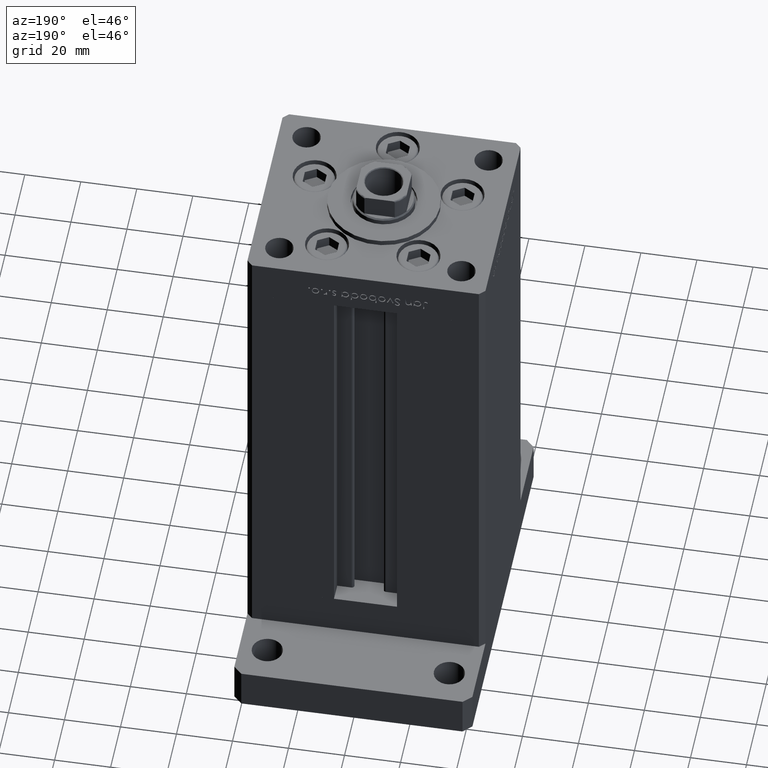
[diagram: clean part render]
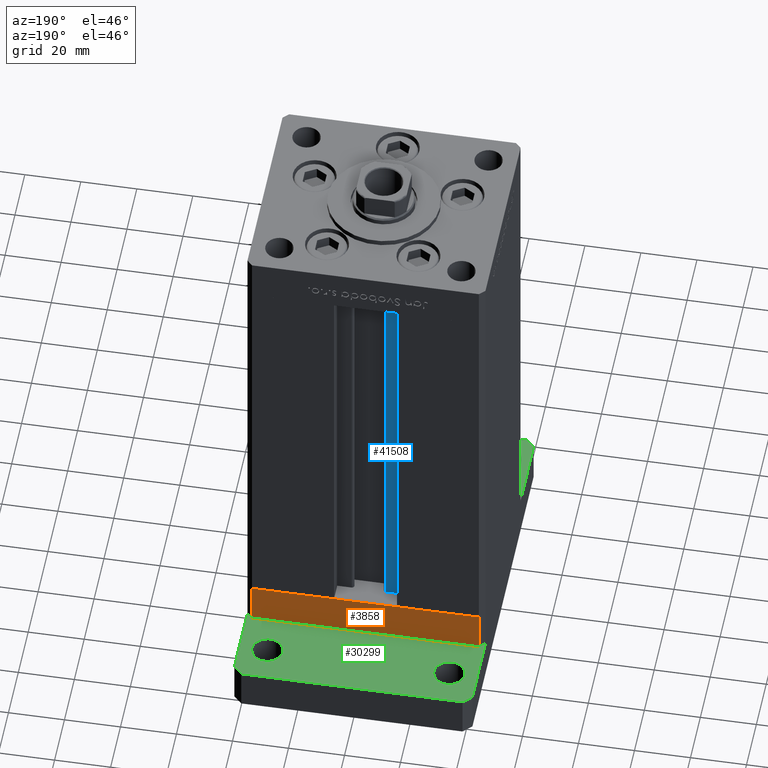
[diagram: same view with three faces highlighted in distinct colors, each labeled with its STEP entity id]
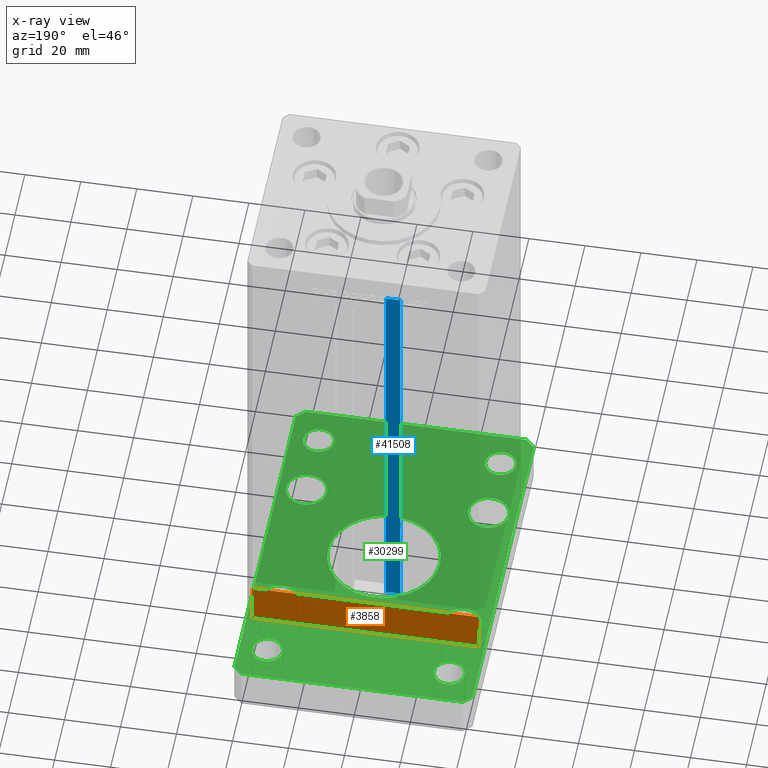
[diagram: x-ray of the same camera — body ghosted, the three highlighted faces saturated]
A machine part, auxiliary view with three faces highlighted in distinct colors.
The next image is the same camera in x-ray (body ghosted, the three faces saturated) — at least one of them is partly hidden behind the body in this view.
Their STEP definitions:

[orange] entity #3858 — the highlighted planar face has unit normal (0, 1, 0).
#3858 = ADVANCED_FACE ( 'NONE', ( #44397 ), #53098, .T. ) ;
#5335 = VERTEX_POINT ( 'NONE', #14667 ) ;
#5989 = DIRECTION ( 'NONE',  ( -1.000000000000000000, -3.426614273534436165E-16, 0.000000000000000000 ) ) ;
#6555 = VECTOR ( 'NONE', #44374, 1000.000000000000000 ) ;
#7786 = VERTEX_POINT ( 'NONE', #35727 ) ;
#9029 = CARTESIAN_POINT ( 'NONE',  ( -40.50000000000000711, 37.49999999999997868, 0.000000000000000000 ) ) ;
#9115 = ORIENTED_EDGE ( 'NONE', *, *, #15600, .T. ) ;
#11194 = VERTEX_POINT ( 'NONE', #9029 ) ;
#12774 = VECTOR ( 'NONE', #5989, 1000.000000000000000 ) ;
#12861 = EDGE_LOOP ( 'NONE', ( #27345, #18051, #34508, #9115 ) ) ;
#12873 = DIRECTION ( 'NONE',  ( -1.000000000000000000, -3.426614273534436165E-16, 0.000000000000000000 ) ) ;
#13847 = CARTESIAN_POINT ( 'NONE',  ( 40.49999999999991473, 37.50000000000000711, -15.00000000000000000 ) ) ;
#14667 = CARTESIAN_POINT ( 'NONE',  ( 40.49999999999991473, 37.50000000000000711, -15.00000000000000000 ) ) ;
#14783 = VERTEX_POINT ( 'NONE', #35538 ) ;
#15600 = EDGE_CURVE ( 'NONE', #14783, #11194, #32021, .T. ) ;
#18051 = ORIENTED_EDGE ( 'NONE', *, *, #21168, .F. ) ;
#20061 = VECTOR ( 'NONE', #34455, 1000.000000000000000 ) ;
#21168 = EDGE_CURVE ( 'NONE', #5335, #7786, #47205, .T. ) ;
#24559 = DIRECTION ( 'NONE',  ( -3.426614273534436165E-16, 1.000000000000000000, 0.000000000000000000 ) ) ;
#27345 = ORIENTED_EDGE ( 'NONE', *, *, #38574, .F. ) ;
#31616 = LINE ( 'NONE', #35146, #6555 ) ;
#32021 = LINE ( 'NONE', #48308, #45330 ) ;
#34455 = DIRECTION ( 'NONE',  ( 0.000000000000000000, 0.000000000000000000, 1.000000000000000000 ) ) ;
#34480 = LINE ( 'NONE', #13847, #12774 ) ;
#34508 = ORIENTED_EDGE ( 'NONE', *, *, #49655, .T. ) ;
#35146 = CARTESIAN_POINT ( 'NONE',  ( 40.49999999999991473, 37.50000000000000711, 0.000000000000000000 ) ) ;
#35247 = CARTESIAN_POINT ( 'NONE',  ( 40.49999999999991473, 37.50000000000000711, -15.00000000000000000 ) ) ;
#35538 = CARTESIAN_POINT ( 'NONE',  ( -40.50000000000000711, 37.49999999999997868, -15.00000000000000000 ) ) ;
#35727 = CARTESIAN_POINT ( 'NONE',  ( 40.49999999999991473, 37.50000000000000711, 0.000000000000000000 ) ) ;
#36636 = DIRECTION ( 'NONE',  ( 0.000000000000000000, 0.000000000000000000, 1.000000000000000000 ) ) ;
#38574 = EDGE_CURVE ( 'NONE', #7786, #11194, #31616, .T. ) ;
#40725 = AXIS2_PLACEMENT_3D ( 'NONE', #41385, #24559, #12873 ) ;
#41385 = CARTESIAN_POINT ( 'NONE',  ( 40.49999999999991473, 37.50000000000000711, -15.00000000000000000 ) ) ;
#44374 = DIRECTION ( 'NONE',  ( -1.000000000000000000, -3.426614273534436165E-16, 0.000000000000000000 ) ) ;
#44397 = FACE_OUTER_BOUND ( 'NONE', #12861, .T. ) ;
#45330 = VECTOR ( 'NONE', #36636, 1000.000000000000000 ) ;
#47205 = LINE ( 'NONE', #35247, #20061 ) ;
#48308 = CARTESIAN_POINT ( 'NONE',  ( -40.50000000000000711, 37.49999999999997868, -15.00000000000000000 ) ) ;
#49655 = EDGE_CURVE ( 'NONE', #5335, #14783, #34480, .T. ) ;
#53098 = PLANE ( 'NONE',  #40725 ) ;

[blue] entity #41508 — the highlighted planar face has unit normal (0, -1, 0).
#4867 = EDGE_CURVE ( 'NONE', #11484, #29551, #34582, .T. ) ;
#5018 = CARTESIAN_POINT ( 'NONE',  ( -6.183333333333999704, 30.99999999999999289, 0.000000000000000000 ) ) ;
#5281 = CARTESIAN_POINT ( 'NONE',  ( -6.183333333333999704, 30.99999999999999289, 0.000000000000000000 ) ) ;
#5554 = DIRECTION ( 'NONE',  ( -0.000000000000000000, -0.000000000000000000, 1.000000000000000000 ) ) ;
#7692 = LINE ( 'NONE', #32383, #40173 ) ;
#8278 = CARTESIAN_POINT ( 'NONE',  ( -11.25000000000000000, 30.99999999999999289, 0.000000000000000000 ) ) ;
#11484 = VERTEX_POINT ( 'NONE', #27172 ) ;
#11622 = CARTESIAN_POINT ( 'NONE',  ( -11.25000000000000000, 30.99999999999999289, 0.000000000000000000 ) ) ;
#12271 = CARTESIAN_POINT ( 'NONE',  ( -11.25000000000000000, 30.99999999999999289, 148.5000000000000000 ) ) ;
#15015 = DIRECTION ( 'NONE',  ( 1.000000000000000000, -0.000000000000000000, -0.000000000000000000 ) ) ;
#15587 = CARTESIAN_POINT ( 'NONE',  ( 0.000000000000000000, 30.99999999999999289, 148.5000000000000000 ) ) ;
#16900 = EDGE_CURVE ( 'NONE', #35732, #11484, #7692, .T. ) ;
#16966 = FACE_OUTER_BOUND ( 'NONE', #49773, .T. ) ;
#17226 = VECTOR ( 'NONE', #5554, 1000.000000000000000 ) ;
#17782 = ORIENTED_EDGE ( 'NONE', *, *, #22373, .F. ) ;
#21575 = DIRECTION ( 'NONE',  ( 0.000000000000000000, -1.000000000000000000, -0.000000000000000000 ) ) ;
#22373 = EDGE_CURVE ( 'NONE', #29551, #45578, #32150, .T. ) ;
#24383 = VECTOR ( 'NONE', #51712, 1000.000000000000000 ) ;
#27172 = CARTESIAN_POINT ( 'NONE',  ( -6.183333333333999704, 30.99999999999999289, 0.000000000000000000 ) ) ;
#27877 = ORIENTED_EDGE ( 'NONE', *, *, #16900, .F. ) ;
#29551 = VERTEX_POINT ( 'NONE', #49022 ) ;
#32150 = LINE ( 'NONE', #15587, #24383 ) ;
#32383 = CARTESIAN_POINT ( 'NONE',  ( -6.183333333333999704, 30.99999999999999289, 0.000000000000000000 ) ) ;
#32440 = DIRECTION ( 'NONE',  ( -0.000000000000000000, -0.000000000000000000, 1.000000000000000000 ) ) ;
#33522 = PLANE ( 'NONE',  #48240 ) ;
#34056 = DIRECTION ( 'NONE',  ( 0.000000000000000000, 0.000000000000000000, -1.000000000000000000 ) ) ;
#34362 = VECTOR ( 'NONE', #32440, 1000.000000000000000 ) ;
#34582 = LINE ( 'NONE', #5281, #17226 ) ;
#35732 = VERTEX_POINT ( 'NONE', #11622 ) ;
#36571 = ORIENTED_EDGE ( 'NONE', *, *, #46049, .T. ) ;
#40173 = VECTOR ( 'NONE', #15015, 1000.000000000000000 ) ;
#41508 = ADVANCED_FACE ( 'NONE', ( #16966 ), #33522, .F. ) ;
#45578 = VERTEX_POINT ( 'NONE', #12271 ) ;
#46049 = EDGE_CURVE ( 'NONE', #35732, #45578, #49803, .T. ) ;
#48240 = AXIS2_PLACEMENT_3D ( 'NONE', #5018, #21575, #34056 ) ;
#49022 = CARTESIAN_POINT ( 'NONE',  ( -6.183333333333999704, 30.99999999999999289, 148.5000000000000000 ) ) ;
#49773 = EDGE_LOOP ( 'NONE', ( #50671, #27877, #36571, #17782 ) ) ;
#49803 = LINE ( 'NONE', #8278, #34362 ) ;
#50671 = ORIENTED_EDGE ( 'NONE', *, *, #4867, .F. ) ;
#51712 = DIRECTION ( 'NONE',  ( -1.000000000000000000, 0.000000000000000000, 0.000000000000000000 ) ) ;

[green] entity #30299 — the highlighted planar face has unit normal (0, 0, 1).
#550 = AXIS2_PLACEMENT_3D ( 'NONE', #49057, #11879, #44998 ) ;
#628 = EDGE_LOOP ( 'NONE', ( #6193, #23129 ) ) ;
#1271 = AXIS2_PLACEMENT_3D ( 'NONE', #27562, #3403, #24017 ) ;
#1564 = DIRECTION ( 'NONE',  ( 1.000000000000000000, 0.000000000000000000, 0.000000000000000000 ) ) ;
#1798 = CARTESIAN_POINT ( 'NONE',  ( 32.50000000000000000, 27.50000000000000000, 15.00000000000000000 ) ) ;
#2233 = VERTEX_POINT ( 'NONE', #50962 ) ;
#2401 = DIRECTION ( 'NONE',  ( 1.000000000000000000, 0.000000000000000000, -0.000000000000000000 ) ) ;
#2526 = CIRCLE ( 'NONE', #4295, 20.00000000000000000 ) ;
#2576 = EDGE_CURVE ( 'NONE', #44452, #35004, #2526, .T. ) ;
#2601 = EDGE_CURVE ( 'NONE', #49642, #24880, #45038, .T. ) ;
#2752 = VECTOR ( 'NONE', #53684, 1000.000000000000000 ) ;
#2850 = CARTESIAN_POINT ( 'NONE',  ( -25.25000000000000711, 27.50000000000000000, 15.00000000000000000 ) ) ;
#2988 = CARTESIAN_POINT ( 'NONE',  ( -32.49999999999997868, -52.00000000000000711, 15.00000000000000000 ) ) ;
#3046 = EDGE_LOOP ( 'NONE', ( #7730, #43377 ) ) ;
#3386 = CARTESIAN_POINT ( 'NONE',  ( 37.99999999999999289, 51.99999999999999289, 15.00000000000000000 ) ) ;
#3403 = DIRECTION ( 'NONE',  ( 0.000000000000000000, 0.000000000000000000, 1.000000000000000000 ) ) ;
#3588 = VERTEX_POINT ( 'NONE', #24879 ) ;
#3978 = EDGE_LOOP ( 'NONE', ( #49546, #10743 ) ) ;
#4092 = EDGE_CURVE ( 'NONE', #32156, #18810, #43779, .T. ) ;
#4173 = CIRCLE ( 'NONE', #42304, 5.499999999999994671 ) ;
#4248 = ORIENTED_EDGE ( 'NONE', *, *, #28396, .T. ) ;
#4295 = AXIS2_PLACEMENT_3D ( 'NONE', #46908, #21944, #1564 ) ;
#4359 = EDGE_LOOP ( 'NONE', ( #4714, #39036 ) ) ;
#4714 = ORIENTED_EDGE ( 'NONE', *, *, #28119, .F. ) ;
#4851 = VERTEX_POINT ( 'NONE', #26440 ) ;
#5119 = DIRECTION ( 'NONE',  ( 0.000000000000000000, 0.000000000000000000, 1.000000000000000000 ) ) ;
#5358 = DIRECTION ( 'NONE',  ( 1.000000000000000000, 0.000000000000000000, 0.000000000000000000 ) ) ;
#5919 = DIRECTION ( 'NONE',  ( 0.000000000000000000, 0.000000000000000000, 1.000000000000000000 ) ) ;
#6193 = ORIENTED_EDGE ( 'NONE', *, *, #2576, .F. ) ;
#6600 = DIRECTION ( 'NONE',  ( -0.7071067811865466846, -0.7071067811865483499, 0.000000000000000000 ) ) ;
#6716 = EDGE_CURVE ( 'NONE', #51656, #2233, #51113, .T. ) ;
#7353 = CARTESIAN_POINT ( 'NONE',  ( -39.50000000000000000, -65.00000000000000000, 15.00000000000000000 ) ) ;
#7613 = DIRECTION ( 'NONE',  ( 1.000000000000000000, 0.000000000000000000, 0.000000000000000000 ) ) ;
#7687 = CARTESIAN_POINT ( 'NONE',  ( -42.50000000000002132, 62.00000000000000711, 15.00000000000000000 ) ) ;
#7730 = ORIENTED_EDGE ( 'NONE', *, *, #17372, .F. ) ;
#7956 = DIRECTION ( 'NONE',  ( 0.000000000000000000, 0.000000000000000000, 1.000000000000000000 ) ) ;
#8052 = FACE_BOUND ( 'NONE', #3046, .T. ) ;
#8313 = DIRECTION ( 'NONE',  ( 0.000000000000000000, 0.000000000000000000, 1.000000000000000000 ) ) ;
#8405 = ORIENTED_EDGE ( 'NONE', *, *, #16030, .T. ) ;
#8987 = DIRECTION ( 'NONE',  ( 0.000000000000000000, 0.000000000000000000, 1.000000000000000000 ) ) ;
#9838 = CIRCLE ( 'NONE', #34952, 7.249999999999999112 ) ;
#10443 = AXIS2_PLACEMENT_3D ( 'NONE', #32711, #29436, #16951 ) ;
#10743 = ORIENTED_EDGE ( 'NONE', *, *, #52382, .F. ) ;
#10842 = CARTESIAN_POINT ( 'NONE',  ( 0.000000000000000000, 0.000000000000000000, 15.00000000000000000 ) ) ;
#11022 = ORIENTED_EDGE ( 'NONE', *, *, #53317, .F. ) ;
#11241 = DIRECTION ( 'NONE',  ( 1.000000000000000000, 0.000000000000000000, 0.000000000000000000 ) ) ;
#11424 = LINE ( 'NONE', #13937, #50514 ) ;
#11716 = CARTESIAN_POINT ( 'NONE',  ( -27.00000000000000711, 52.00000000000000000, 15.00000000000000000 ) ) ;
#11879 = DIRECTION ( 'NONE',  ( 0.000000000000000000, 0.000000000000000000, 1.000000000000000000 ) ) ;
#12193 = VERTEX_POINT ( 'NONE', #24579 ) ;
#12403 = LINE ( 'NONE', #15939, #2752 ) ;
#12474 = LINE ( 'NONE', #7353, #53128 ) ;
#12968 = EDGE_CURVE ( 'NONE', #3588, #19475, #18389, .T. ) ;
#13724 = DIRECTION ( 'NONE',  ( 1.000000000000000000, 0.000000000000000000, 0.000000000000000000 ) ) ;
#13937 = CARTESIAN_POINT ( 'NONE',  ( 39.50000000000002842, 65.00000000000002842, 15.00000000000000000 ) ) ;
#14554 = DIRECTION ( 'NONE',  ( 0.000000000000000000, 0.000000000000000000, 1.000000000000000000 ) ) ;
#14723 = EDGE_LOOP ( 'NONE', ( #33215, #43922 ) ) ;
#14830 = DIRECTION ( 'NONE',  ( 0.7071067811865483499, -0.7071067811865466846, 0.000000000000000000 ) ) ;
#15328 = ORIENTED_EDGE ( 'NONE', *, *, #25504, .T. ) ;
#15939 = CARTESIAN_POINT ( 'NONE',  ( 42.50000000000000000, 62.00000000000000711, 15.00000000000000000 ) ) ;
#16030 = EDGE_CURVE ( 'NONE', #4851, #32156, #11424, .T. ) ;
#16268 = VERTEX_POINT ( 'NONE', #19220 ) ;
#16451 = FACE_BOUND ( 'NONE', #17875, .T. ) ;
#16563 = DIRECTION ( 'NONE',  ( 0.000000000000000000, 0.000000000000000000, 1.000000000000000000 ) ) ;
#16764 = VERTEX_POINT ( 'NONE', #21829 ) ;
#16832 = CARTESIAN_POINT ( 'NONE',  ( -39.50000000000000000, -65.00000000000000000, 15.00000000000000000 ) ) ;
#16887 = CARTESIAN_POINT ( 'NONE',  ( -32.50000000000000000, 52.00000000000000000, 15.00000000000000000 ) ) ;
#16921 = VERTEX_POINT ( 'NONE', #28051 ) ;
#16951 = DIRECTION ( 'NONE',  ( 1.000000000000000000, 0.000000000000000000, 0.000000000000000000 ) ) ;
#17107 = EDGE_LOOP ( 'NONE', ( #28703, #25597 ) ) ;
#17372 = EDGE_CURVE ( 'NONE', #24185, #38830, #47102, .T. ) ;
#17868 = DIRECTION ( 'NONE',  ( 1.000000000000000000, 0.000000000000000000, 0.000000000000000000 ) ) ;
#17875 = EDGE_LOOP ( 'NONE', ( #27256, #23089 ) ) ;
#17933 = AXIS2_PLACEMENT_3D ( 'NONE', #25929, #8313, #41418 ) ;
#18083 = VECTOR ( 'NONE', #6600, 1000.000000000000000 ) ;
#18092 = AXIS2_PLACEMENT_3D ( 'NONE', #34151, #5919, #39299 ) ;
#18389 = CIRCLE ( 'NONE', #45255, 7.249999999999999112 ) ;
#18525 = EDGE_CURVE ( 'NONE', #19475, #3588, #21672, .T. ) ;
#18810 = VERTEX_POINT ( 'NONE', #7687 ) ;
#18832 = EDGE_CURVE ( 'NONE', #48044, #28554, #22557, .T. ) ;
#19220 = CARTESIAN_POINT ( 'NONE',  ( 27.00000000000001421, 51.99999999999999289, 15.00000000000000000 ) ) ;
#19313 = CARTESIAN_POINT ( 'NONE',  ( -42.50000000000002132, 62.00000000000000711, 15.00000000000000000 ) ) ;
#19475 = VERTEX_POINT ( 'NONE', #34853 ) ;
#19902 = EDGE_LOOP ( 'NONE', ( #44088, #11022 ) ) ;
#20699 = DIRECTION ( 'NONE',  ( 1.000000000000000000, 0.000000000000000000, 0.000000000000000000 ) ) ;
#21101 = CARTESIAN_POINT ( 'NONE',  ( -42.49999999999999289, -62.00000000000001421, 15.00000000000000000 ) ) ;
#21129 = CARTESIAN_POINT ( 'NONE',  ( 39.50000000000001421, -64.99999999999988631, 15.00000000000000000 ) ) ;
#21269 = CARTESIAN_POINT ( 'NONE',  ( 42.50000000000000000, -61.99999999999988631, 15.00000000000000000 ) ) ;
#21388 = VECTOR ( 'NONE', #14830, 1000.000000000000000 ) ;
#21672 = CIRCLE ( 'NONE', #10443, 7.249999999999999112 ) ;
#21821 = CIRCLE ( 'NONE', #44338, 20.00000000000000000 ) ;
#21829 = CARTESIAN_POINT ( 'NONE',  ( -39.75000000000000000, -27.50000000000000000, 15.00000000000000000 ) ) ;
#21916 = EDGE_CURVE ( 'NONE', #2233, #51656, #22628, .T. ) ;
#21944 = DIRECTION ( 'NONE',  ( 0.000000000000000000, 0.000000000000000000, 1.000000000000000000 ) ) ;
#22557 = CIRCLE ( 'NONE', #30346, 5.499999999999994671 ) ;
#22628 = CIRCLE ( 'NONE', #37367, 7.249999999999999112 ) ;
#22692 = CARTESIAN_POINT ( 'NONE',  ( 39.50000000000001421, -64.99999999999988631, 15.00000000000000000 ) ) ;
#22756 = ORIENTED_EDGE ( 'NONE', *, *, #18525, .F. ) ;
#22777 = FACE_BOUND ( 'NONE', #3978, .T. ) ;
#22942 = EDGE_CURVE ( 'NONE', #35004, #44452, #21821, .T. ) ;
#23089 = ORIENTED_EDGE ( 'NONE', *, *, #6716, .F. ) ;
#23129 = ORIENTED_EDGE ( 'NONE', *, *, #22942, .F. ) ;
#23270 = DIRECTION ( 'NONE',  ( 0.000000000000000000, 1.000000000000000000, 0.000000000000000000 ) ) ;
#23339 = DIRECTION ( 'NONE',  ( 0.000000000000000000, 0.000000000000000000, 1.000000000000000000 ) ) ;
#23435 = CARTESIAN_POINT ( 'NONE',  ( -32.50000000000000000, -27.50000000000000000, 15.00000000000000000 ) ) ;
#23647 = LINE ( 'NONE', #19313, #49610 ) ;
#23974 = CIRCLE ( 'NONE', #550, 5.499999999999994671 ) ;
#24017 = DIRECTION ( 'NONE',  ( 1.000000000000000000, 0.000000000000000000, 0.000000000000000000 ) ) ;
#24136 = VERTEX_POINT ( 'NONE', #21269 ) ;
#24185 = VERTEX_POINT ( 'NONE', #39964 ) ;
#24579 = CARTESIAN_POINT ( 'NONE',  ( -26.99999999999998579, -52.00000000000000711, 15.00000000000000000 ) ) ;
#24585 = DIRECTION ( 'NONE',  ( 1.000000000000000000, 0.000000000000000000, 0.000000000000000000 ) ) ;
#24594 = EDGE_CURVE ( 'NONE', #30696, #4851, #12403, .T. ) ;
#24850 = CARTESIAN_POINT ( 'NONE',  ( -38.00000000000000000, 52.00000000000000000, 15.00000000000000000 ) ) ;
#24879 = CARTESIAN_POINT ( 'NONE',  ( 39.75000000000000000, -27.50000000000000000, 15.00000000000000000 ) ) ;
#24880 = VERTEX_POINT ( 'NONE', #2850 ) ;
#25282 = CARTESIAN_POINT ( 'NONE',  ( -25.25000000000000000, -27.50000000000000000, 15.00000000000000000 ) ) ;
#25504 = EDGE_CURVE ( 'NONE', #34381, #51081, #12474, .T. ) ;
#25597 = ORIENTED_EDGE ( 'NONE', *, *, #36005, .F. ) ;
#25929 = CARTESIAN_POINT ( 'NONE',  ( -32.50000000000000711, 27.50000000000000000, 15.00000000000000000 ) ) ;
#26073 = CARTESIAN_POINT ( 'NONE',  ( -39.75000000000000711, 27.50000000000000000, 15.00000000000000000 ) ) ;
#26273 = EDGE_LOOP ( 'NONE', ( #22756, #47105 ) ) ;
#26440 = CARTESIAN_POINT ( 'NONE',  ( 39.50000000000002842, 65.00000000000002842, 15.00000000000000000 ) ) ;
#26538 = AXIS2_PLACEMENT_3D ( 'NONE', #47113, #47370, #13724 ) ;
#26619 = EDGE_CURVE ( 'NONE', #38830, #24185, #27121, .T. ) ;
#26664 = VERTEX_POINT ( 'NONE', #21101 ) ;
#26814 = EDGE_CURVE ( 'NONE', #51081, #24136, #38726, .T. ) ;
#27121 = CIRCLE ( 'NONE', #27995, 5.499999999999998224 ) ;
#27256 = ORIENTED_EDGE ( 'NONE', *, *, #21916, .F. ) ;
#27275 = VECTOR ( 'NONE', #23270, 1000.000000000000000 ) ;
#27562 = CARTESIAN_POINT ( 'NONE',  ( 32.50000000000000000, 51.99999999999999289, 15.00000000000000000 ) ) ;
#27568 = ORIENTED_EDGE ( 'NONE', *, *, #35579, .T. ) ;
#27909 = DIRECTION ( 'NONE',  ( 0.000000000000000000, 0.000000000000000000, 1.000000000000000000 ) ) ;
#27995 = AXIS2_PLACEMENT_3D ( 'NONE', #31702, #27909, #40398 ) ;
#28051 = CARTESIAN_POINT ( 'NONE',  ( -37.99999999999997868, -52.00000000000000711, 15.00000000000000000 ) ) ;
#28119 = EDGE_CURVE ( 'NONE', #16764, #46581, #9838, .T. ) ;
#28396 = EDGE_CURVE ( 'NONE', #18810, #26664, #23647, .T. ) ;
#28400 = DIRECTION ( 'NONE',  ( 0.000000000000000000, 0.000000000000000000, 1.000000000000000000 ) ) ;
#28554 = VERTEX_POINT ( 'NONE', #11716 ) ;
#28669 = CARTESIAN_POINT ( 'NONE',  ( 32.50000000000000000, -27.50000000000000000, 15.00000000000000000 ) ) ;
#28673 = FACE_BOUND ( 'NONE', #628, .T. ) ;
#28703 = ORIENTED_EDGE ( 'NONE', *, *, #47000, .F. ) ;
#28950 = ORIENTED_EDGE ( 'NONE', *, *, #26814, .T. ) ;
#29175 = AXIS2_PLACEMENT_3D ( 'NONE', #39051, #35230, #46924 ) ;
#29436 = DIRECTION ( 'NONE',  ( 0.000000000000000000, 0.000000000000000000, 1.000000000000000000 ) ) ;
#29595 = CARTESIAN_POINT ( 'NONE',  ( 0.000000000000000000, 0.000000000000000000, 15.00000000000000000 ) ) ;
#30090 = CIRCLE ( 'NONE', #17933, 7.249999999999999112 ) ;
#30299 = ADVANCED_FACE ( 'NONE', ( #28673, #39882, #53660, #22777, #33005, #39612, #31463, #48024, #16451, #8052 ), #49030, .T. ) ;
#30323 = AXIS2_PLACEMENT_3D ( 'NONE', #1798, #14554, #5358 ) ;
#30346 = AXIS2_PLACEMENT_3D ( 'NONE', #16887, #7956, #20699 ) ;
#30696 = VERTEX_POINT ( 'NONE', #40024 ) ;
#31232 = CARTESIAN_POINT ( 'NONE',  ( -39.50000000000003553, 65.00000000000000000, 15.00000000000000000 ) ) ;
#31395 = CARTESIAN_POINT ( 'NONE',  ( -42.49999999999999289, -62.00000000000001421, 15.00000000000000000 ) ) ;
#31463 = FACE_BOUND ( 'NONE', #17107, .T. ) ;
#31702 = CARTESIAN_POINT ( 'NONE',  ( 32.49999999999997868, -52.00000000000000711, 15.00000000000000000 ) ) ;
#32156 = VERTEX_POINT ( 'NONE', #31232 ) ;
#32711 = CARTESIAN_POINT ( 'NONE',  ( 32.50000000000000000, -27.50000000000000000, 15.00000000000000000 ) ) ;
#33005 = FACE_BOUND ( 'NONE', #19902, .T. ) ;
#33166 = AXIS2_PLACEMENT_3D ( 'NONE', #10842, #49570, #2401 ) ;
#33215 = ORIENTED_EDGE ( 'NONE', *, *, #2601, .F. ) ;
#34126 = CARTESIAN_POINT ( 'NONE',  ( 32.49999999999997868, -52.00000000000000711, 15.00000000000000000 ) ) ;
#34151 = CARTESIAN_POINT ( 'NONE',  ( -32.50000000000000000, -27.50000000000000000, 15.00000000000000000 ) ) ;
#34381 = VERTEX_POINT ( 'NONE', #16832 ) ;
#34853 = CARTESIAN_POINT ( 'NONE',  ( 25.25000000000000000, -27.50000000000000000, 15.00000000000000000 ) ) ;
#34952 = AXIS2_PLACEMENT_3D ( 'NONE', #23435, #40007, #11241 ) ;
#35004 = VERTEX_POINT ( 'NONE', #36769 ) ;
#35230 = DIRECTION ( 'NONE',  ( 0.000000000000000000, 0.000000000000000000, 1.000000000000000000 ) ) ;
#35579 = EDGE_CURVE ( 'NONE', #24136, #30696, #43902, .T. ) ;
#36005 = EDGE_CURVE ( 'NONE', #38635, #16268, #46348, .T. ) ;
#36110 = DIRECTION ( 'NONE',  ( -1.000000000000000000, -3.513364001978340512E-16, 0.000000000000000000 ) ) ;
#36620 = EDGE_LOOP ( 'NONE', ( #15328, #28950, #27568, #49458, #8405, #52723, #4248, #48790 ) ) ;
#36769 = CARTESIAN_POINT ( 'NONE',  ( 20.00000000000000000, 2.449293598294706513E-15, 15.00000000000000000 ) ) ;
#37367 = AXIS2_PLACEMENT_3D ( 'NONE', #50982, #47159, #43085 ) ;
#38235 = CARTESIAN_POINT ( 'NONE',  ( -32.50000000000000711, 27.50000000000000000, 15.00000000000000000 ) ) ;
#38635 = VERTEX_POINT ( 'NONE', #3386 ) ;
#38726 = LINE ( 'NONE', #22692, #50549 ) ;
#38830 = VERTEX_POINT ( 'NONE', #43758 ) ;
#39036 = ORIENTED_EDGE ( 'NONE', *, *, #52014, .F. ) ;
#39051 = CARTESIAN_POINT ( 'NONE',  ( 32.50000000000000000, 51.99999999999999289, 15.00000000000000000 ) ) ;
#39299 = DIRECTION ( 'NONE',  ( 1.000000000000000000, 0.000000000000000000, 0.000000000000000000 ) ) ;
#39309 = AXIS2_PLACEMENT_3D ( 'NONE', #34126, #16563, #50968 ) ;
#39612 = FACE_OUTER_BOUND ( 'NONE', #36620, .T. ) ;
#39622 = DIRECTION ( 'NONE',  ( 1.000000000000000000, 0.000000000000000000, 0.000000000000000000 ) ) ;
#39882 = FACE_BOUND ( 'NONE', #14723, .T. ) ;
#39964 = CARTESIAN_POINT ( 'NONE',  ( 26.99999999999998579, -52.00000000000000711, 15.00000000000000000 ) ) ;
#40007 = DIRECTION ( 'NONE',  ( 0.000000000000000000, 0.000000000000000000, 1.000000000000000000 ) ) ;
#40024 = CARTESIAN_POINT ( 'NONE',  ( 42.50000000000000000, 62.00000000000000711, 15.00000000000000000 ) ) ;
#40398 = DIRECTION ( 'NONE',  ( 1.000000000000000000, 0.000000000000000000, 0.000000000000000000 ) ) ;
#41418 = DIRECTION ( 'NONE',  ( 1.000000000000000000, 0.000000000000000000, 0.000000000000000000 ) ) ;
#41495 = CIRCLE ( 'NONE', #18092, 7.249999999999999112 ) ;
#42052 = EDGE_CURVE ( 'NONE', #26664, #34381, #52309, .T. ) ;
#42154 = CARTESIAN_POINT ( 'NONE',  ( -20.00000000000000000, 0.000000000000000000, 15.00000000000000000 ) ) ;
#42304 = AXIS2_PLACEMENT_3D ( 'NONE', #2988, #23339, #7613 ) ;
#43085 = DIRECTION ( 'NONE',  ( 1.000000000000000000, 0.000000000000000000, 0.000000000000000000 ) ) ;
#43377 = ORIENTED_EDGE ( 'NONE', *, *, #26619, .F. ) ;
#43758 = CARTESIAN_POINT ( 'NONE',  ( 37.99999999999997868, -52.00000000000000711, 15.00000000000000000 ) ) ;
#43779 = LINE ( 'NONE', #51938, #18083 ) ;
#43902 = LINE ( 'NONE', #52066, #27275 ) ;
#43922 = ORIENTED_EDGE ( 'NONE', *, *, #48075, .F. ) ;
#43928 = CIRCLE ( 'NONE', #29175, 5.499999999999991118 ) ;
#44088 = ORIENTED_EDGE ( 'NONE', *, *, #50604, .F. ) ;
#44338 = AXIS2_PLACEMENT_3D ( 'NONE', #29595, #8987, #39622 ) ;
#44452 = VERTEX_POINT ( 'NONE', #42154 ) ;
#44998 = DIRECTION ( 'NONE',  ( 1.000000000000000000, 0.000000000000000000, 0.000000000000000000 ) ) ;
#45038 = CIRCLE ( 'NONE', #45868, 7.249999999999999112 ) ;
#45255 = AXIS2_PLACEMENT_3D ( 'NONE', #28669, #28400, #24585 ) ;
#45332 = DIRECTION ( 'NONE',  ( 1.000000000000000000, 1.405345600791337191E-15, 0.000000000000000000 ) ) ;
#45868 = AXIS2_PLACEMENT_3D ( 'NONE', #38235, #5119, #17868 ) ;
#46348 = CIRCLE ( 'NONE', #1271, 5.499999999999991118 ) ;
#46581 = VERTEX_POINT ( 'NONE', #25282 ) ;
#46908 = CARTESIAN_POINT ( 'NONE',  ( 0.000000000000000000, 0.000000000000000000, 15.00000000000000000 ) ) ;
#46924 = DIRECTION ( 'NONE',  ( 1.000000000000000000, 0.000000000000000000, 0.000000000000000000 ) ) ;
#47000 = EDGE_CURVE ( 'NONE', #16268, #38635, #43928, .T. ) ;
#47102 = CIRCLE ( 'NONE', #39309, 5.499999999999998224 ) ;
#47105 = ORIENTED_EDGE ( 'NONE', *, *, #12968, .F. ) ;
#47113 = CARTESIAN_POINT ( 'NONE',  ( -32.50000000000000000, 52.00000000000000000, 15.00000000000000000 ) ) ;
#47159 = DIRECTION ( 'NONE',  ( 0.000000000000000000, 0.000000000000000000, 1.000000000000000000 ) ) ;
#47370 = DIRECTION ( 'NONE',  ( 0.000000000000000000, 0.000000000000000000, 1.000000000000000000 ) ) ;
#48024 = FACE_BOUND ( 'NONE', #4359, .T. ) ;
#48044 = VERTEX_POINT ( 'NONE', #24850 ) ;
#48075 = EDGE_CURVE ( 'NONE', #24880, #49642, #30090, .T. ) ;
#48085 = DIRECTION ( 'NONE',  ( 2.238352872228137677E-16, -1.000000000000000000, 0.000000000000000000 ) ) ;
#48239 = CIRCLE ( 'NONE', #26538, 5.499999999999994671 ) ;
#48790 = ORIENTED_EDGE ( 'NONE', *, *, #42052, .T. ) ;
#49030 = PLANE ( 'NONE',  #33166 ) ;
#49057 = CARTESIAN_POINT ( 'NONE',  ( -32.49999999999997868, -52.00000000000000711, 15.00000000000000000 ) ) ;
#49458 = ORIENTED_EDGE ( 'NONE', *, *, #24594, .T. ) ;
#49546 = ORIENTED_EDGE ( 'NONE', *, *, #18832, .F. ) ;
#49570 = DIRECTION ( 'NONE',  ( 0.000000000000000000, 0.000000000000000000, 1.000000000000000000 ) ) ;
#49610 = VECTOR ( 'NONE', #48085, 1000.000000000000000 ) ;
#49642 = VERTEX_POINT ( 'NONE', #26073 ) ;
#50514 = VECTOR ( 'NONE', #36110, 1000.000000000000000 ) ;
#50549 = VECTOR ( 'NONE', #51234, 1000.000000000000114 ) ;
#50604 = EDGE_CURVE ( 'NONE', #16921, #12193, #4173, .T. ) ;
#50962 = CARTESIAN_POINT ( 'NONE',  ( 25.25000000000000000, 27.50000000000000000, 15.00000000000000000 ) ) ;
#50968 = DIRECTION ( 'NONE',  ( 1.000000000000000000, 0.000000000000000000, 0.000000000000000000 ) ) ;
#50982 = CARTESIAN_POINT ( 'NONE',  ( 32.50000000000000000, 27.50000000000000000, 15.00000000000000000 ) ) ;
#51081 = VERTEX_POINT ( 'NONE', #21129 ) ;
#51113 = CIRCLE ( 'NONE', #30323, 7.249999999999999112 ) ;
#51234 = DIRECTION ( 'NONE',  ( 0.7071067811865459074, 0.7071067811865491270, 0.000000000000000000 ) ) ;
#51328 = CARTESIAN_POINT ( 'NONE',  ( 39.75000000000000000, 27.50000000000000000, 15.00000000000000000 ) ) ;
#51656 = VERTEX_POINT ( 'NONE', #51328 ) ;
#51938 = CARTESIAN_POINT ( 'NONE',  ( -39.50000000000003553, 65.00000000000000000, 15.00000000000000000 ) ) ;
#52014 = EDGE_CURVE ( 'NONE', #46581, #16764, #41495, .T. ) ;
#52066 = CARTESIAN_POINT ( 'NONE',  ( 42.50000000000000000, -61.99999999999988631, 15.00000000000000000 ) ) ;
#52309 = LINE ( 'NONE', #31395, #21388 ) ;
#52382 = EDGE_CURVE ( 'NONE', #28554, #48044, #48239, .T. ) ;
#52723 = ORIENTED_EDGE ( 'NONE', *, *, #4092, .T. ) ;
#53128 = VECTOR ( 'NONE', #45332, 1000.000000000000000 ) ;
#53317 = EDGE_CURVE ( 'NONE', #12193, #16921, #23974, .T. ) ;
#53660 = FACE_BOUND ( 'NONE', #26273, .T. ) ;
#53684 = DIRECTION ( 'NONE',  ( -0.7071067811865417996, 0.7071067811865532349, 0.000000000000000000 ) ) ;